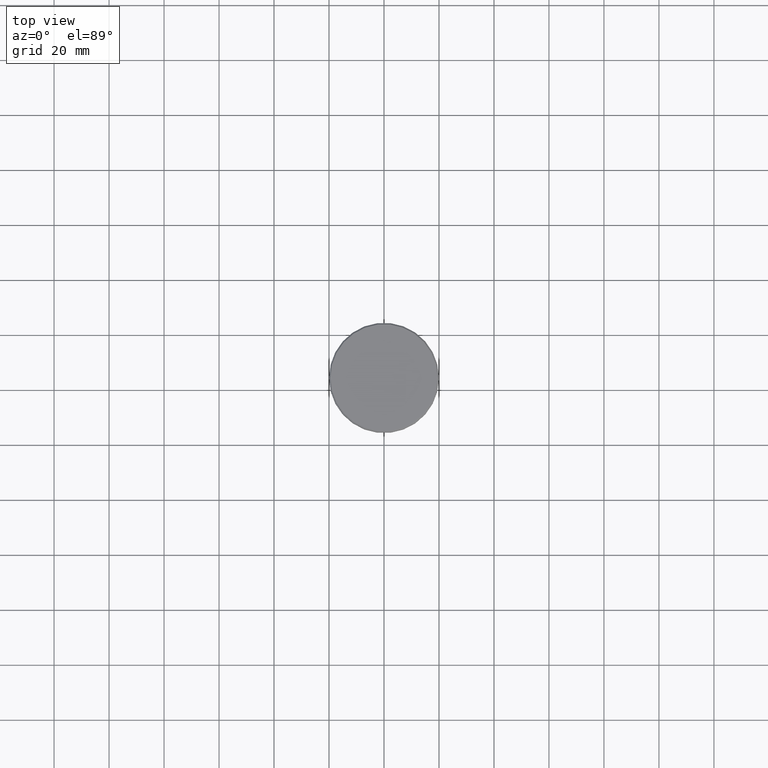
[diagram: clean part render]
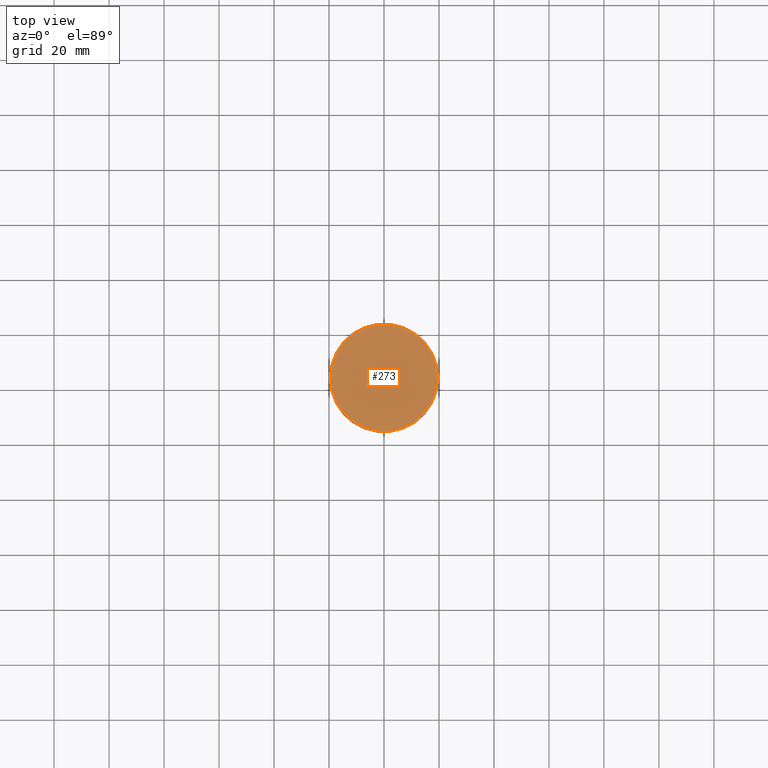
[diagram: same view with one face highlighted and labeled with its STEP entity id]
A machine part, top view. The second image highlights one B-rep face of the part: STEP entity #273.
In plain terms, the highlighted planar face has unit normal (0, -0, 1).
Its self-contained STEP definition (entity closure, byte-faithful):
#4 = DIRECTION ( 'NONE',  ( -0.000000000000000000, -0.000000000000000000, 1.000000000000000000 ) ) ;
#138 = EDGE_CURVE ( 'NONE', #661, #572, #927, .T. ) ;
#170 = CARTESIAN_POINT ( 'NONE',  ( 0.000000000000000000, 0.000000000000000000, 0.000000000000000000 ) ) ;
#180 = CARTESIAN_POINT ( 'NONE',  ( -19.49999999999996092, 0.000000000000000000, 0.000000000000000000 ) ) ;
#181 = PLANE ( 'NONE',  #539 ) ;
#273 = ADVANCED_FACE ( 'NONE', ( #543 ), #181, .T. ) ;
#333 = ORIENTED_EDGE ( 'NONE', *, *, #571, .T. ) ;
#508 = DIRECTION ( 'NONE',  ( -0.000000000000000000, -0.000000000000000000, 1.000000000000000000 ) ) ;
#539 = AXIS2_PLACEMENT_3D ( 'NONE', #1110, #821, #640 ) ;
#543 = FACE_OUTER_BOUND ( 'NONE', #751, .T. ) ;
#571 = EDGE_CURVE ( 'NONE', #572, #661, #1120, .T. ) ;
#572 = VERTEX_POINT ( 'NONE', #717 ) ;
#578 = AXIS2_PLACEMENT_3D ( 'NONE', #728, #4, #991 ) ;
#640 = DIRECTION ( 'NONE',  ( 1.000000000000000000, 0.000000000000000000, 0.000000000000000000 ) ) ;
#661 = VERTEX_POINT ( 'NONE', #180 ) ;
#717 = CARTESIAN_POINT ( 'NONE',  ( 19.49999999999996092, 2.418677428316020359E-15, 0.000000000000000000 ) ) ;
#728 = CARTESIAN_POINT ( 'NONE',  ( 0.000000000000000000, 0.000000000000000000, 0.000000000000000000 ) ) ;
#751 = EDGE_LOOP ( 'NONE', ( #767, #333 ) ) ;
#767 = ORIENTED_EDGE ( 'NONE', *, *, #138, .T. ) ;
#805 = DIRECTION ( 'NONE',  ( 1.000000000000000000, 0.000000000000000000, 0.000000000000000000 ) ) ;
#821 = DIRECTION ( 'NONE',  ( 0.000000000000000000, -0.000000000000000000, 1.000000000000000000 ) ) ;
#927 = CIRCLE ( 'NONE', #1004, 19.49999999999996092 ) ;
#991 = DIRECTION ( 'NONE',  ( 1.000000000000000000, 0.000000000000000000, 0.000000000000000000 ) ) ;
#1004 = AXIS2_PLACEMENT_3D ( 'NONE', #170, #508, #805 ) ;
#1110 = CARTESIAN_POINT ( 'NONE',  ( 0.000000000000000000, 0.000000000000000000, 0.000000000000000000 ) ) ;
#1120 = CIRCLE ( 'NONE', #578, 19.49999999999996092 ) ;